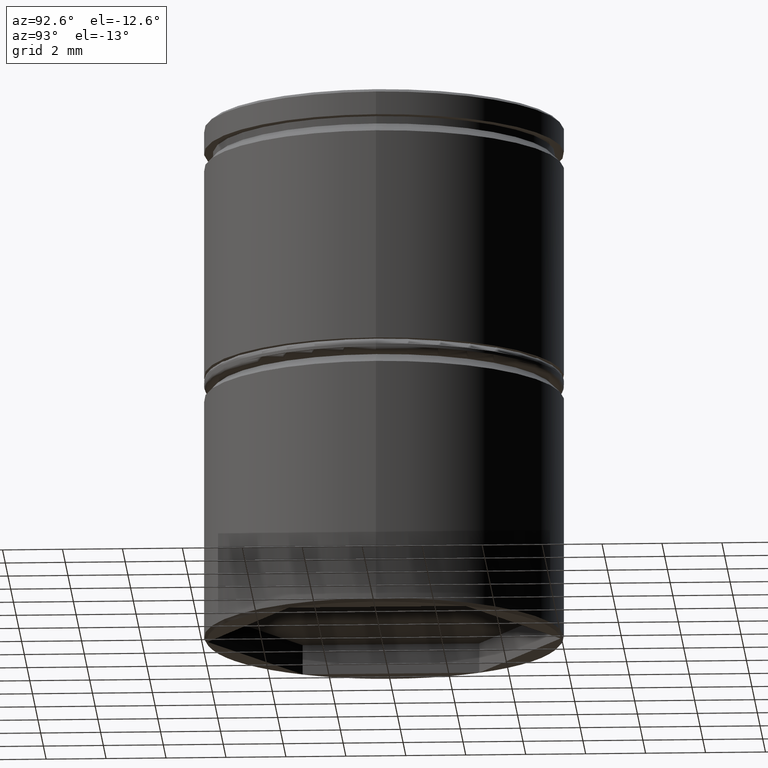
[diagram: clean part render]
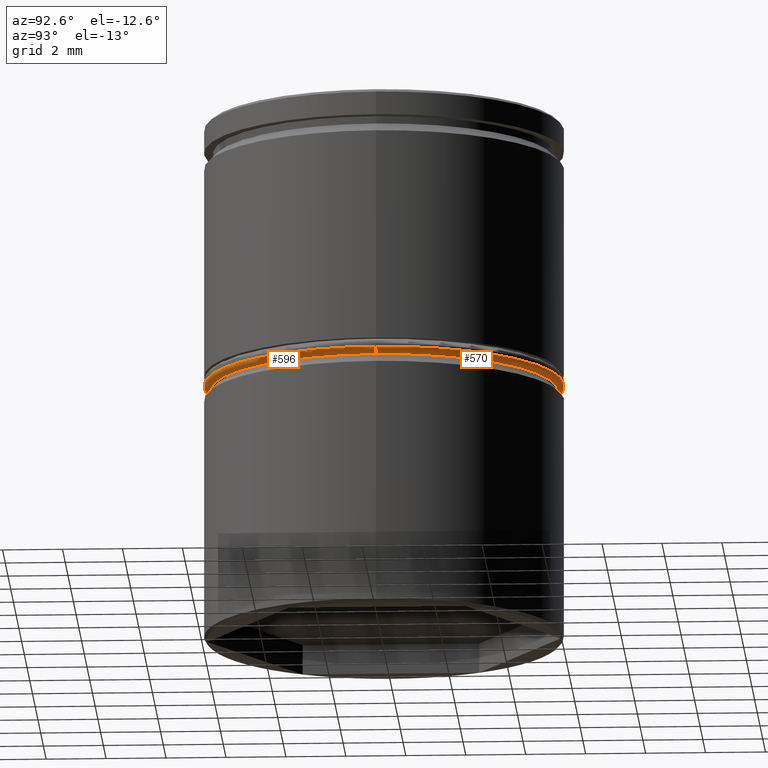
[diagram: same view with one multi-face feature highlighted, each face labeled with its STEP entity id]
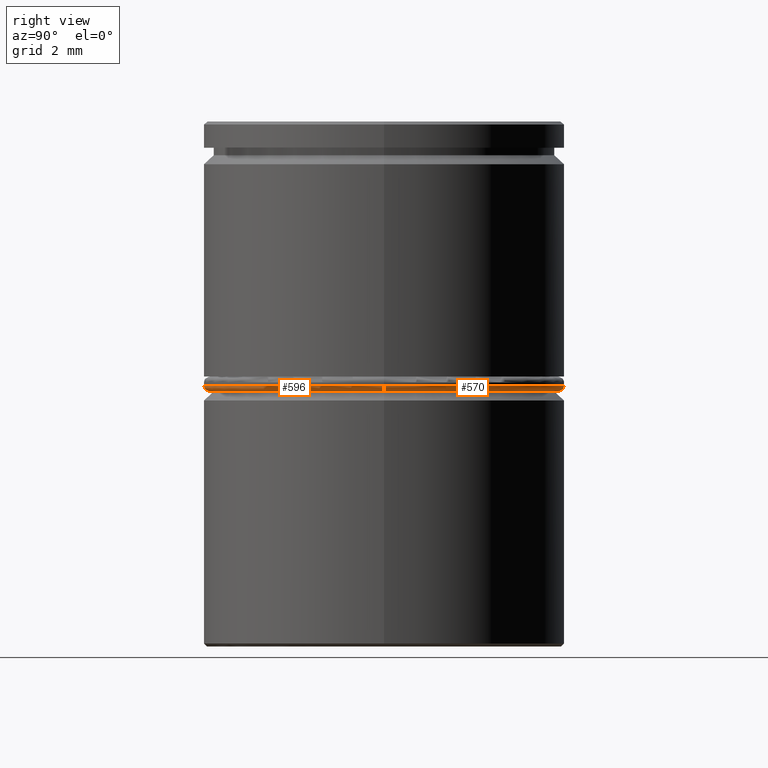
[diagram: same view with one multi-face feature highlighted, each face labeled with its STEP entity id]
A machine part, auxiliary view. The highlighted faces form ONE feature: a constant-radius fillet chain: 2 tangent blend faces with common blend radius 0.2 mm. The faces share edges in the B-rep.
A second angle (right view) of the same feature is appended — it is thin or edge-on in the first view.
Their STEP definitions:
[1] entity #570 (Torus):
#35 = ORIENTED_EDGE ( 'NONE', *, *, #646, .F. ) ;
#84 = AXIS2_PLACEMENT_3D ( 'NONE', #222, #606, #217 ) ;
#98 = DIRECTION ( 'NONE',  ( 1.000000000000000000, 0.000000000000000000, 0.000000000000000000 ) ) ;
#107 = AXIS2_PLACEMENT_3D ( 'NONE', #720, #635, #98 ) ;
#130 = EDGE_CURVE ( 'NONE', #414, #559, #363, .T. ) ;
#132 = CARTESIAN_POINT ( 'NONE',  ( -5.800000000000001599, 7.102951435054649637E-16, -8.800000000000002487 ) ) ;
#139 = TOROIDAL_SURFACE ( 'NONE', #276, 5.800000000000001599, 0.2000000000000000111 ) ;
#183 = DIRECTION ( 'NONE',  ( -0.000000000000000000, -0.000000000000000000, -1.000000000000000000 ) ) ;
#217 = DIRECTION ( 'NONE',  ( 0.000000000000000000, 0.000000000000000000, -1.000000000000000000 ) ) ;
#222 = CARTESIAN_POINT ( 'NONE',  ( 5.800000000000001599, 0.000000000000000000, -8.800000000000002487 ) ) ;
#227 = VERTEX_POINT ( 'NONE', #348 ) ;
#266 = EDGE_CURVE ( 'NONE', #227, #465, #631, .T. ) ;
#276 = AXIS2_PLACEMENT_3D ( 'NONE', #764, #924, #703 ) ;
#308 = CARTESIAN_POINT ( 'NONE',  ( 5.800000000000001599, 0.000000000000000000, -9.000000000000001776 ) ) ;
#348 = CARTESIAN_POINT ( 'NONE',  ( 6.000000000000000888, 0.000000000000000000, -8.800000000000002487 ) ) ;
#363 = CIRCLE ( 'NONE', #551, 5.800000000000001599 ) ;
#377 = AXIS2_PLACEMENT_3D ( 'NONE', #132, #688, #934 ) ;
#414 = VERTEX_POINT ( 'NONE', #980 ) ;
#429 = CARTESIAN_POINT ( 'NONE',  ( -6.000000000000000888, 7.347880794884120722E-16, -8.800000000000002487 ) ) ;
#465 = VERTEX_POINT ( 'NONE', #429 ) ;
#494 = ORIENTED_EDGE ( 'NONE', *, *, #130, .F. ) ;
#496 = DIRECTION ( 'NONE',  ( 1.000000000000000000, 0.000000000000000000, 0.000000000000000000 ) ) ;
#551 = AXIS2_PLACEMENT_3D ( 'NONE', #886, #183, #496 ) ;
#559 = VERTEX_POINT ( 'NONE', #308 ) ;
#570 = ADVANCED_FACE ( 'NONE', ( #837 ), #139, .T. ) ;
#606 = DIRECTION ( 'NONE',  ( 0.000000000000000000, -1.000000000000000000, 0.000000000000000000 ) ) ;
#631 = CIRCLE ( 'NONE', #107, 6.000000000000000888 ) ;
#635 = DIRECTION ( 'NONE',  ( 0.000000000000000000, 0.000000000000000000, 1.000000000000000000 ) ) ;
#646 = EDGE_CURVE ( 'NONE', #559, #227, #944, .T. ) ;
#688 = DIRECTION ( 'NONE',  ( 1.224646799147353207E-16, 1.000000000000000000, -0.000000000000000000 ) ) ;
#703 = DIRECTION ( 'NONE',  ( 1.000000000000000000, 0.000000000000000000, 0.000000000000000000 ) ) ;
#720 = CARTESIAN_POINT ( 'NONE',  ( 0.000000000000000000, 0.000000000000000000, -8.800000000000002487 ) ) ;
#743 = ORIENTED_EDGE ( 'NONE', *, *, #1004, .T. ) ;
#764 = CARTESIAN_POINT ( 'NONE',  ( 0.000000000000000000, 0.000000000000000000, -8.800000000000002487 ) ) ;
#771 = EDGE_LOOP ( 'NONE', ( #494, #743, #989, #35 ) ) ;
#837 = FACE_OUTER_BOUND ( 'NONE', #771, .T. ) ;
#886 = CARTESIAN_POINT ( 'NONE',  ( 0.000000000000000000, 0.000000000000000000, -9.000000000000001776 ) ) ;
#911 = CIRCLE ( 'NONE', #377, 0.1999999999999996503 ) ;
#924 = DIRECTION ( 'NONE',  ( 0.000000000000000000, 0.000000000000000000, 1.000000000000000000 ) ) ;
#934 = DIRECTION ( 'NONE',  ( -1.000000000000000000, 1.224646799147353454E-16, 0.000000000000000000 ) ) ;
#944 = CIRCLE ( 'NONE', #84, 0.2000000000000005107 ) ;
#980 = CARTESIAN_POINT ( 'NONE',  ( -5.800000000000001599, 7.225416114969385180E-16, -9.000000000000001776 ) ) ;
#989 = ORIENTED_EDGE ( 'NONE', *, *, #266, .F. ) ;
#1004 = EDGE_CURVE ( 'NONE', #414, #465, #911, .T. ) ;
[2] entity #596 (Torus):
#21 = CARTESIAN_POINT ( 'NONE',  ( 0.000000000000000000, 0.000000000000000000, -8.800000000000002487 ) ) ;
#29 = DIRECTION ( 'NONE',  ( -0.000000000000000000, -0.000000000000000000, -1.000000000000000000 ) ) ;
#84 = AXIS2_PLACEMENT_3D ( 'NONE', #222, #606, #217 ) ;
#106 = CARTESIAN_POINT ( 'NONE',  ( 0.000000000000000000, 0.000000000000000000, -9.000000000000001776 ) ) ;
#132 = CARTESIAN_POINT ( 'NONE',  ( -5.800000000000001599, 7.102951435054649637E-16, -8.800000000000002487 ) ) ;
#169 = CIRCLE ( 'NONE', #985, 5.800000000000001599 ) ;
#197 = DIRECTION ( 'NONE',  ( 1.000000000000000000, 0.000000000000000000, 0.000000000000000000 ) ) ;
#217 = DIRECTION ( 'NONE',  ( 0.000000000000000000, 0.000000000000000000, -1.000000000000000000 ) ) ;
#222 = CARTESIAN_POINT ( 'NONE',  ( 5.800000000000001599, 0.000000000000000000, -8.800000000000002487 ) ) ;
#227 = VERTEX_POINT ( 'NONE', #348 ) ;
#231 = ORIENTED_EDGE ( 'NONE', *, *, #966, .F. ) ;
#255 = CIRCLE ( 'NONE', #582, 6.000000000000000888 ) ;
#305 = DIRECTION ( 'NONE',  ( 0.000000000000000000, 0.000000000000000000, 1.000000000000000000 ) ) ;
#308 = CARTESIAN_POINT ( 'NONE',  ( 5.800000000000001599, 0.000000000000000000, -9.000000000000001776 ) ) ;
#348 = CARTESIAN_POINT ( 'NONE',  ( 6.000000000000000888, 0.000000000000000000, -8.800000000000002487 ) ) ;
#352 = ORIENTED_EDGE ( 'NONE', *, *, #646, .T. ) ;
#377 = AXIS2_PLACEMENT_3D ( 'NONE', #132, #688, #934 ) ;
#392 = DIRECTION ( 'NONE',  ( 1.000000000000000000, 0.000000000000000000, 0.000000000000000000 ) ) ;
#395 = EDGE_CURVE ( 'NONE', #559, #414, #169, .T. ) ;
#402 = TOROIDAL_SURFACE ( 'NONE', #664, 5.800000000000001599, 0.2000000000000000111 ) ;
#414 = VERTEX_POINT ( 'NONE', #980 ) ;
#429 = CARTESIAN_POINT ( 'NONE',  ( -6.000000000000000888, 7.347880794884120722E-16, -8.800000000000002487 ) ) ;
#465 = VERTEX_POINT ( 'NONE', #429 ) ;
#513 = ORIENTED_EDGE ( 'NONE', *, *, #1004, .F. ) ;
#559 = VERTEX_POINT ( 'NONE', #308 ) ;
#582 = AXIS2_PLACEMENT_3D ( 'NONE', #21, #584, #197 ) ;
#584 = DIRECTION ( 'NONE',  ( 0.000000000000000000, 0.000000000000000000, 1.000000000000000000 ) ) ;
#594 = DIRECTION ( 'NONE',  ( 1.000000000000000000, 0.000000000000000000, 0.000000000000000000 ) ) ;
#596 = ADVANCED_FACE ( 'NONE', ( #1022 ), #402, .T. ) ;
#606 = DIRECTION ( 'NONE',  ( 0.000000000000000000, -1.000000000000000000, 0.000000000000000000 ) ) ;
#612 = EDGE_LOOP ( 'NONE', ( #513, #705, #352, #231 ) ) ;
#622 = CARTESIAN_POINT ( 'NONE',  ( 0.000000000000000000, 0.000000000000000000, -8.800000000000002487 ) ) ;
#646 = EDGE_CURVE ( 'NONE', #559, #227, #944, .T. ) ;
#664 = AXIS2_PLACEMENT_3D ( 'NONE', #622, #305, #392 ) ;
#688 = DIRECTION ( 'NONE',  ( 1.224646799147353207E-16, 1.000000000000000000, -0.000000000000000000 ) ) ;
#705 = ORIENTED_EDGE ( 'NONE', *, *, #395, .F. ) ;
#911 = CIRCLE ( 'NONE', #377, 0.1999999999999996503 ) ;
#934 = DIRECTION ( 'NONE',  ( -1.000000000000000000, 1.224646799147353454E-16, 0.000000000000000000 ) ) ;
#944 = CIRCLE ( 'NONE', #84, 0.2000000000000005107 ) ;
#966 = EDGE_CURVE ( 'NONE', #465, #227, #255, .T. ) ;
#980 = CARTESIAN_POINT ( 'NONE',  ( -5.800000000000001599, 7.225416114969385180E-16, -9.000000000000001776 ) ) ;
#985 = AXIS2_PLACEMENT_3D ( 'NONE', #106, #29, #594 ) ;
#1004 = EDGE_CURVE ( 'NONE', #414, #465, #911, .T. ) ;
#1022 = FACE_OUTER_BOUND ( 'NONE', #612, .T. ) ;